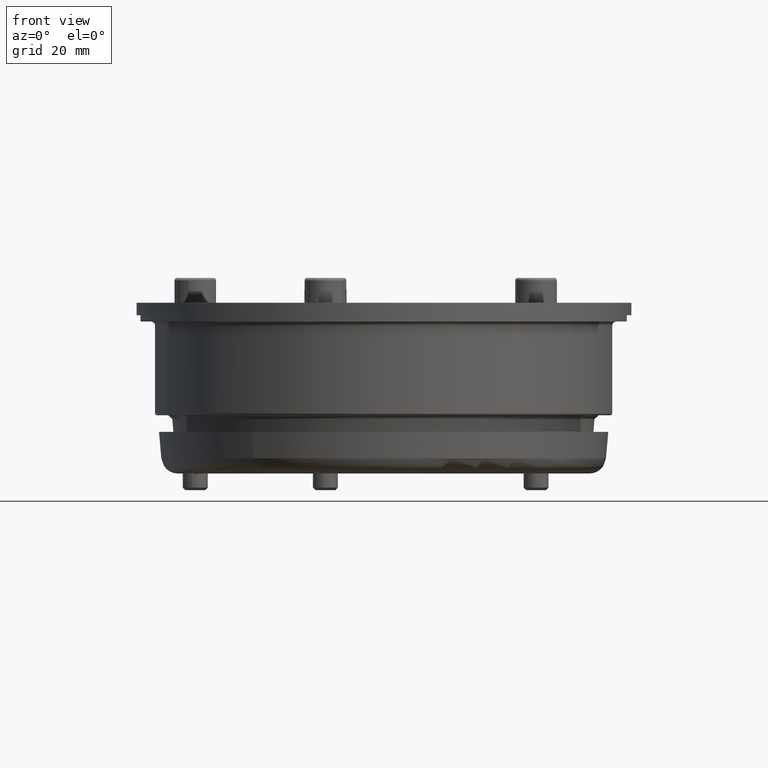
[diagram: clean part render]
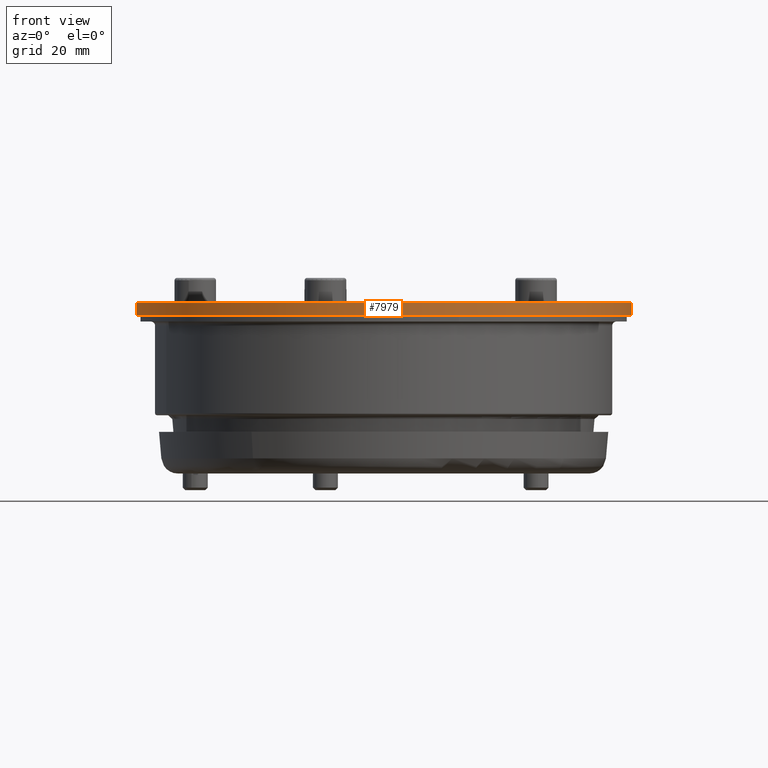
[diagram: same view with one face highlighted and labeled with its STEP entity id]
A machine part, front view. The second image highlights one B-rep face of the part: STEP entity #7979.
In plain terms, the highlighted cylindrical surface (bore or boss wall) has radius 59.5 mm, axis along (-0, 0, 1).
Its self-contained STEP definition (entity closure, byte-faithful):
#218=CYLINDRICAL_SURFACE('',#8624,59.5);
#448=CIRCLE('',#8577,59.5);
#481=CIRCLE('',#8625,59.5);
#1280=FACE_OUTER_BOUND('',#1771,.T.);
#1771=EDGE_LOOP('',(#7276,#7277,#7278,#7279));
#2430=LINE('',#14581,#3075);
#3075=VECTOR('',#10330,59.5);
#3824=VERTEX_POINT('',#14488);
#3857=VERTEX_POINT('',#14580);
#4964=EDGE_CURVE('',#3824,#3824,#448,.T.);
#5008=EDGE_CURVE('',#3824,#3857,#2430,.T.);
#5009=EDGE_CURVE('',#3857,#3857,#481,.T.);
#7276=ORIENTED_EDGE('',*,*,#4964,.F.);
#7277=ORIENTED_EDGE('',*,*,#5008,.T.);
#7278=ORIENTED_EDGE('',*,*,#5009,.F.);
#7279=ORIENTED_EDGE('',*,*,#5008,.F.);
#7979=ADVANCED_FACE('',(#1280),#218,.T.);
#8577=AXIS2_PLACEMENT_3D('',#14489,#10223,#10224);
#8624=AXIS2_PLACEMENT_3D('',#14579,#10328,#10329);
#8625=AXIS2_PLACEMENT_3D('',#14582,#10331,#10332);
#10223=DIRECTION('center_axis',(0.,1.,0.));
#10224=DIRECTION('ref_axis',(1.,0.,0.));
#10328=DIRECTION('center_axis',(0.,1.,0.));
#10329=DIRECTION('ref_axis',(1.,0.,0.));
#10330=DIRECTION('',(0.,-1.,0.));
#10331=DIRECTION('center_axis',(0.,-1.,0.));
#10332=DIRECTION('ref_axis',(1.,0.,0.));
#14488=CARTESIAN_POINT('',(-59.5,3.,7.28664845492675E-15));
#14489=CARTESIAN_POINT('Origin',(0.,3.,0.));
#14579=CARTESIAN_POINT('Origin',(0.,0.,0.));
#14580=CARTESIAN_POINT('',(-59.5,0.,7.28664845492675E-15));
#14581=CARTESIAN_POINT('',(-59.5,0.,7.28664845492675E-15));
#14582=CARTESIAN_POINT('Origin',(0.,0.,0.));